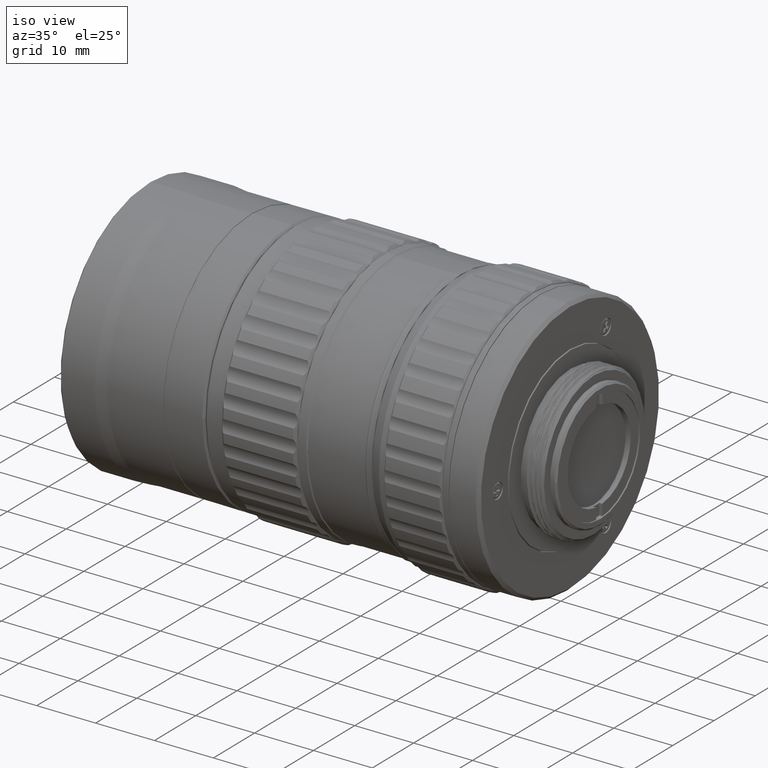
[diagram: clean part render]
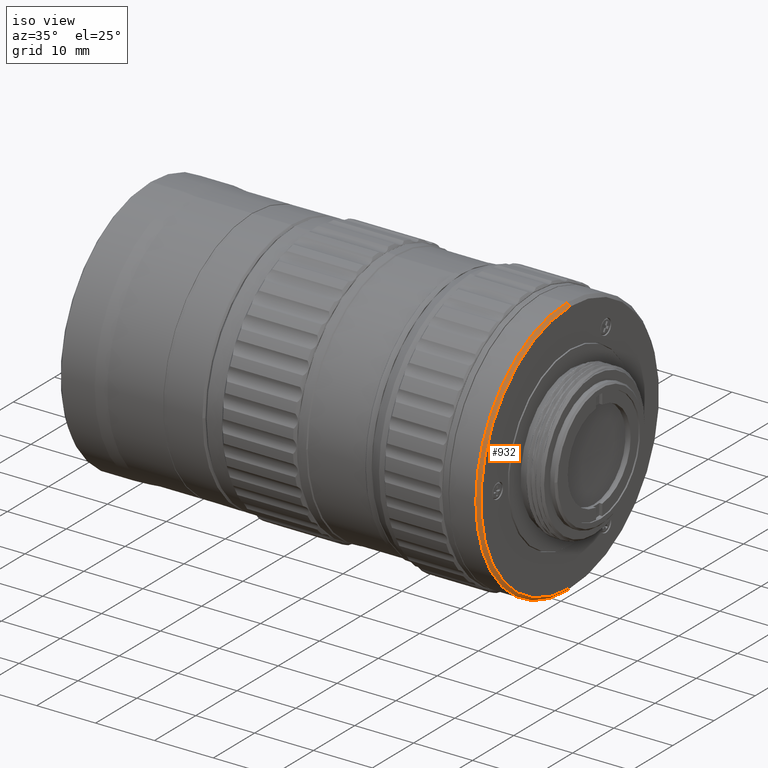
[diagram: same view with one face highlighted and labeled with its STEP entity id]
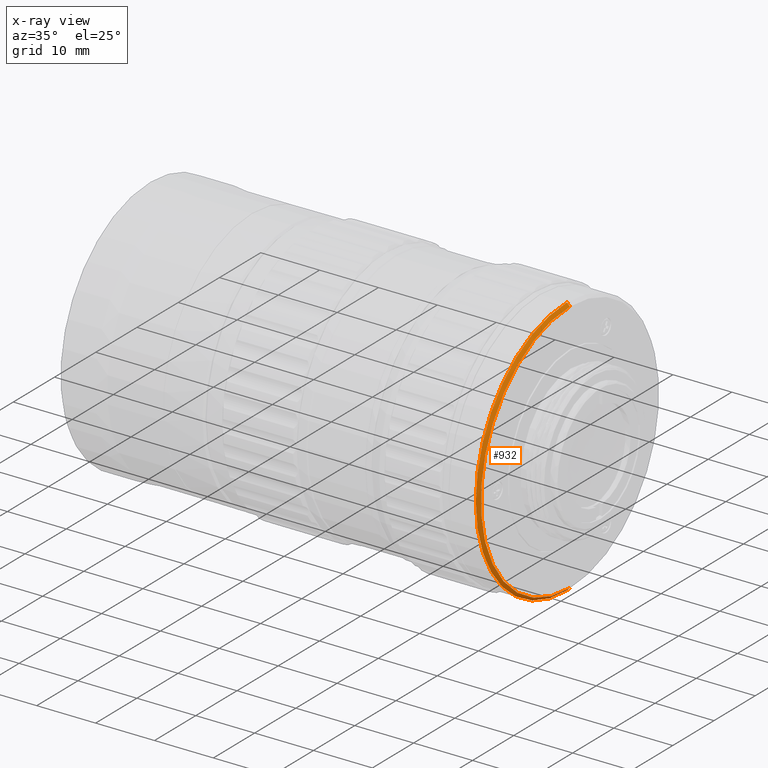
[diagram: x-ray of the same camera — body ghosted, the highlighted face saturated]
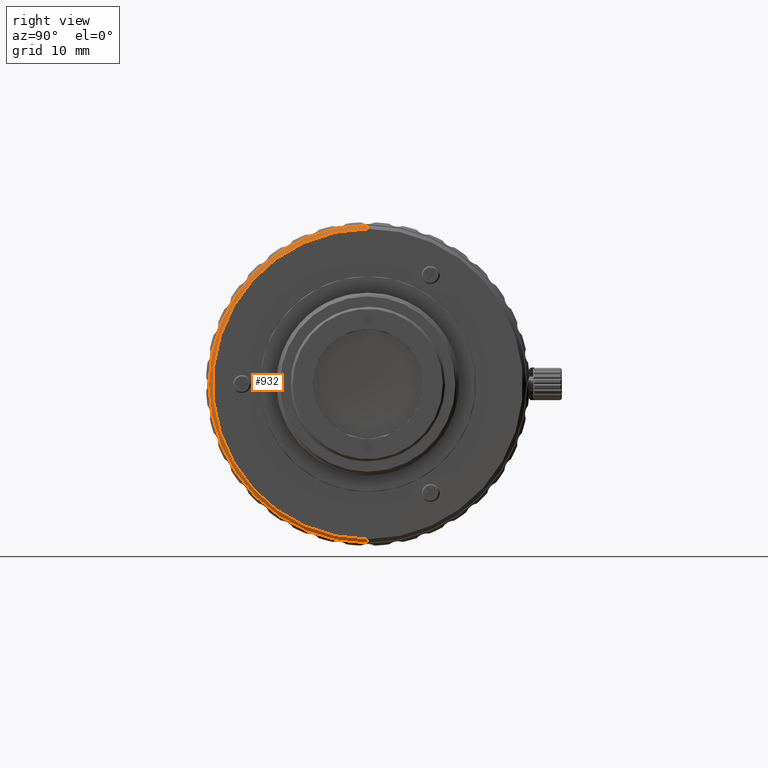
[diagram: same view with one face highlighted and labeled with its STEP entity id]
A machine part, iso view. The second image highlights one B-rep face of the part: STEP entity #932.
The next image is the same camera in x-ray: the body ghosted, the highlighted face saturated — about 0% of this face is hidden behind the body in this view.
A second angle (right view) of the same face is appended — the face is thin or edge-on in the first view.
In plain terms, the highlighted conical surface has half-angle 45 deg.
Its self-contained STEP definition (entity closure, byte-faithful):
#879 = DIRECTION ( 'NONE',  ( 0.000000000000000000, -1.000000000000000000, 0.000000000000000000 ) ) ;
#932 = ADVANCED_FACE ( 'NONE', ( #38285 ), #32556, .T. ) ;
#3414 = DIRECTION ( 'NONE',  ( -1.000000000000000000, 0.000000000000000000, 0.000000000000000000 ) ) ;
#3949 = VECTOR ( 'NONE', #11569, 1000.000000000000000 ) ;
#3994 = AXIS2_PLACEMENT_3D ( 'NONE', #30948, #18366, #879 ) ;
#5010 = ORIENTED_EDGE ( 'NONE', *, *, #50136, .F. ) ;
#5421 = DIRECTION ( 'NONE',  ( 1.000000000000000000, 0.000000000000000000, 0.000000000000000000 ) ) ;
#7117 = CARTESIAN_POINT ( 'NONE',  ( 71.53199999999999648, -3.552713678801000121E-14, 21.59999679012845064 ) ) ;
#11569 = DIRECTION ( 'NONE',  ( -0.7071068337219496014, 0.000000000000000000, 0.7071067286511415473 ) ) ;
#17284 = EDGE_CURVE ( 'NONE', #36203, #34339, #37779, .T. ) ;
#18009 = DIRECTION ( 'NONE',  ( -0.7071068337219496014, 8.659559918981764679E-17, -0.7071067286511415473 ) ) ;
#18366 = DIRECTION ( 'NONE',  ( 1.000000000000000000, 0.000000000000000000, 0.000000000000000000 ) ) ;
#18570 = CARTESIAN_POINT ( 'NONE',  ( 71.53199839514445557, -3.288189989840952678E-14, -21.59999839498370733 ) ) ;
#18862 = LINE ( 'NONE', #18570, #40317 ) ;
#20668 = ORIENTED_EDGE ( 'NONE', *, *, #17284, .T. ) ;
#21036 = ORIENTED_EDGE ( 'NONE', *, *, #36692, .F. ) ;
#21136 = DIRECTION ( 'NONE',  ( 0.000000000000000000, 0.000000000000000000, 1.000000000000000000 ) ) ;
#25305 = EDGE_CURVE ( 'NONE', #32258, #36203, #51311, .T. ) ;
#25699 = CARTESIAN_POINT ( 'NONE',  ( 71.53199839514445557, -3.552713678801000121E-14, 2.428612866367529932E-14 ) ) ;
#28777 = VERTEX_POINT ( 'NONE', #53591 ) ;
#30948 = CARTESIAN_POINT ( 'NONE',  ( 71.03199999999577585, 0.000000000000000000, 0.000000000000000000 ) ) ;
#32258 = VERTEX_POINT ( 'NONE', #7117 ) ;
#32556 = CONICAL_SURFACE ( 'NONE', #54497, 21.59999839498373220, 0.7853980891011674847 ) ;
#34339 = VERTEX_POINT ( 'NONE', #51519 ) ;
#34411 = AXIS2_PLACEMENT_3D ( 'NONE', #53761, #5421, #53183 ) ;
#36203 = VERTEX_POINT ( 'NONE', #50155 ) ;
#36692 = EDGE_CURVE ( 'NONE', #28777, #34339, #18862, .T. ) ;
#37779 = CIRCLE ( 'NONE', #3994, 22.10000000000000142 ) ;
#38101 = CIRCLE ( 'NONE', #34411, 21.59999679012842932 ) ;
#38285 = FACE_OUTER_BOUND ( 'NONE', #48149, .T. ) ;
#38416 = CARTESIAN_POINT ( 'NONE',  ( 71.53199839514445557, -3.552713678801000121E-14, 21.59999839498375707 ) ) ;
#40274 = ORIENTED_EDGE ( 'NONE', *, *, #25305, .T. ) ;
#40317 = VECTOR ( 'NONE', #18009, 1000.000000000000000 ) ;
#48149 = EDGE_LOOP ( 'NONE', ( #21036, #5010, #40274, #20668 ) ) ;
#50136 = EDGE_CURVE ( 'NONE', #32258, #28777, #38101, .T. ) ;
#50155 = CARTESIAN_POINT ( 'NONE',  ( 71.03199999999577585, -3.552714206750986244E-14, 22.10000000000000142 ) ) ;
#51311 = LINE ( 'NONE', #38416, #3949 ) ;
#51519 = CARTESIAN_POINT ( 'NONE',  ( 71.03199999999577585, -3.282067264139428761E-14, -22.10000000000000142 ) ) ;
#53183 = DIRECTION ( 'NONE',  ( 0.000000000000000000, 0.000000000000000000, -1.000000000000000000 ) ) ;
#53591 = CARTESIAN_POINT ( 'NONE',  ( 71.53199999999999648, -3.285128392951800688E-14, -21.59999679012840446 ) ) ;
#53761 = CARTESIAN_POINT ( 'NONE',  ( 71.53199999999999648, -3.552713678801000121E-14, 2.428612866367529932E-14 ) ) ;
#54497 = AXIS2_PLACEMENT_3D ( 'NONE', #25699, #3414, #21136 ) ;